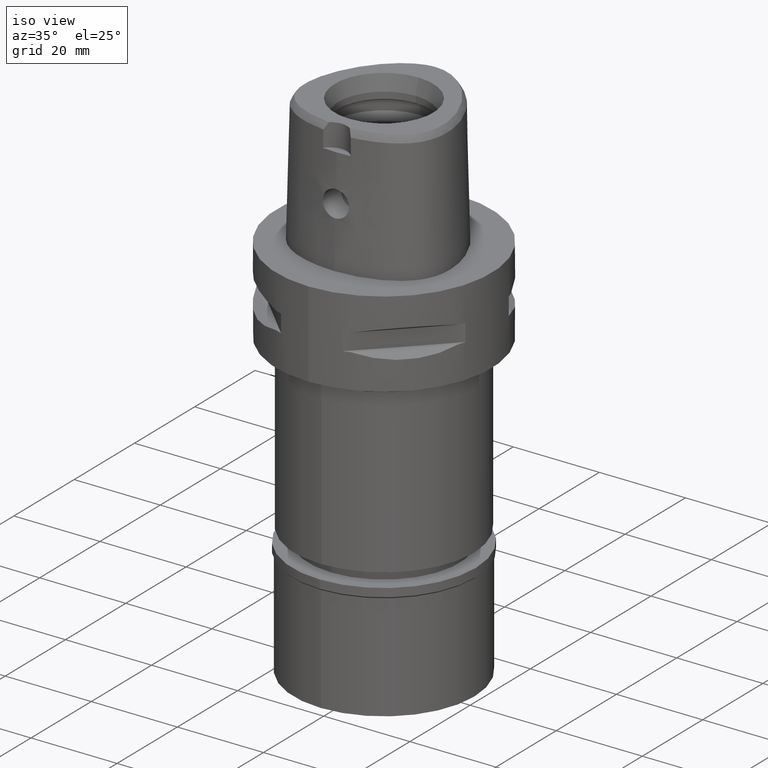
[diagram: clean part render]
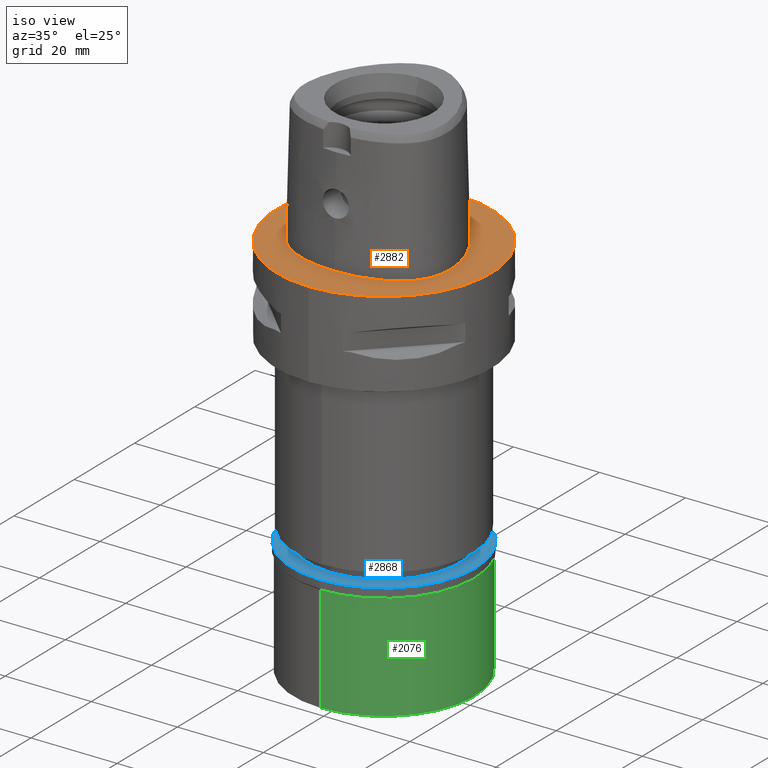
[diagram: same view with three faces highlighted in distinct colors, each labeled with its STEP entity id]
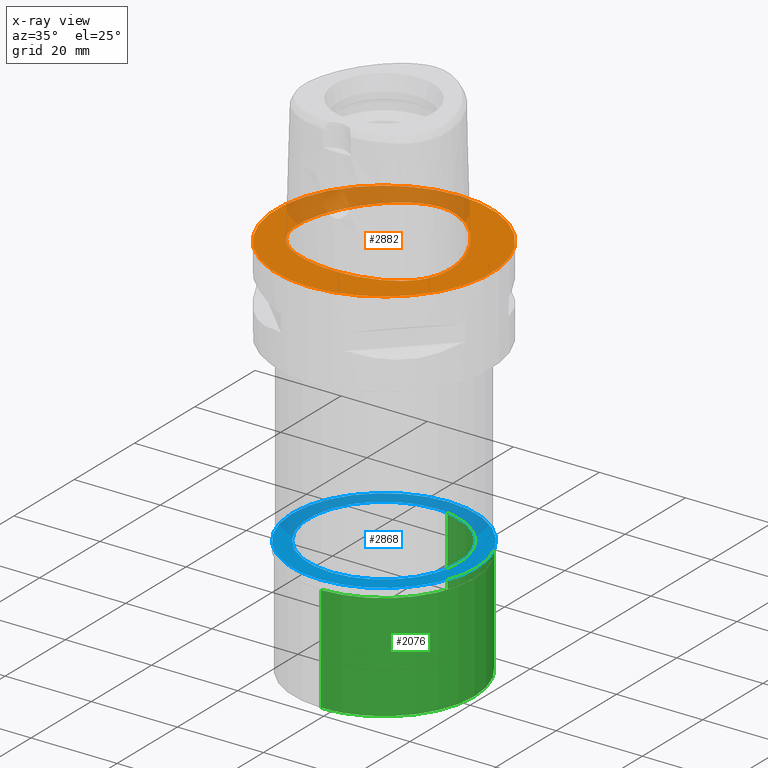
[diagram: x-ray of the same camera — body ghosted, the three highlighted faces saturated]
A machine part, iso view with three faces highlighted in distinct colors.
The next image is the same camera in x-ray (body ghosted, the three faces saturated) — at least one of them is partly hidden behind the body in this view.
Their STEP definitions:

[orange] entity #2882 — the highlighted planar face has unit normal (0, 0, -1).
#3 = EDGE_LOOP ( 'NONE', ( #3701, #4589 ) ) ;
#36 = DIRECTION ( 'NONE',  ( 0.0000000000000000000, 0.0000000000000000000, -1.000000000000000000 ) ) ;
#40 = CARTESIAN_POINT ( 'NONE',  ( -17.16495051821277684, -7.165908203245463959, -1.690801510845045541E-08 ) ) ;
#91 = CARTESIAN_POINT ( 'NONE',  ( -17.71143735603917690, -3.269218749997704787, -1.690801510845045541E-08 ) ) ;
#100 = AXIS2_PLACEMENT_3D ( 'NONE', #1117, #1436, #628 ) ;
#134 = CARTESIAN_POINT ( 'NONE',  ( -8.946741556329989464, -15.03902343790625729, -1.690801510845045541E-08 ) ) ;
#171 = EDGE_CURVE ( 'NONE', #2300, #1055, #1407, .T. ) ;
#269 = CARTESIAN_POINT ( 'NONE',  ( 8.526051962487000024E-11, 18.69499999997999851, 1.857773194538999891E-13 ) ) ;
#294 = CARTESIAN_POINT ( 'NONE',  ( -16.51672824819905827, 3.703437500144240779, -1.690801510845045541E-08 ) ) ;
#296 = CARTESIAN_POINT ( 'NONE',  ( 14.78833381328783325, -11.28232911036973363, -5.104437950337152585E-07 ) ) ;
#343 = CARTESIAN_POINT ( 'NONE',  ( 14.38008120800550671, 8.302343756411996623, -5.104437950337152585E-07 ) ) ;
#413 = ORIENTED_EDGE ( 'NONE', *, *, #2611, .F. ) ;
#628 = DIRECTION ( 'NONE',  ( 0.0000000000000000000, -1.000000000000000000, 0.0000000000000000000 ) ) ;
#719 = PLANE ( 'NONE',  #935 ) ;
#742 = DIRECTION ( 'NONE',  ( 0.0000000000000000000, -1.000000000000000000, 0.0000000000000000000 ) ) ;
#750 = CARTESIAN_POINT ( 'NONE',  ( -17.56373942975215385, -5.455996093810133729, -1.690801510845045541E-08 ) ) ;
#774 = CARTESIAN_POINT ( 'NONE',  ( -16.66912842177992360, -8.445800781422402537, -1.690801510845045541E-08 ) ) ;
#838 = CARTESIAN_POINT ( 'NONE',  ( -14.78833380430417144, -11.28232910184870974, -1.690801510845045541E-08 ) ) ;
#875 = EDGE_LOOP ( 'NONE', ( #413, #1498 ) ) ;
#935 = AXIS2_PLACEMENT_3D ( 'NONE', #3717, #4133, #742 ) ;
#999 = CARTESIAN_POINT ( 'NONE',  ( -4.728927206997867394, 17.73480468788939035, -1.690801510845045541E-08 ) ) ;
#1055 = VERTEX_POINT ( 'NONE', #269 ) ;
#1060 = CARTESIAN_POINT ( 'NONE',  ( 5.051093169834740770, -16.15562501262835227, -5.104437950337152585E-07 ) ) ;
#1081 = CARTESIAN_POINT ( 'NONE',  ( 11.68694517217151763, -13.70394532362162288, -5.104437950337152585E-07 ) ) ;
#1117 = CARTESIAN_POINT ( 'NONE',  ( 0.0000000000000000000, 1.273020347714000000E-14, 0.0000000000000000000 ) ) ;
#1388 = CARTESIAN_POINT ( 'NONE',  ( 8.526051962487000024E-11, 18.69499999997999851, 1.857773194538999891E-13 ) ) ;
#1407 = B_SPLINE_CURVE_WITH_KNOTS ( 'NONE', 3,
 ( #4099, #3273, #1060, #3300, #1081, #2981, #296, #2601, #2556, #4787, #1761, #4056, #4759, #2181, #3677, #343, #1859, #4081, #3322, #3368, #4813, #4492 ),
 .UNSPECIFIED., .F., .F.,
 ( 4, 1, 1, 1, 1, 1, 1, 1, 1, 1, 1, 1, 1, 1, 1, 1, 1, 1, 1, 4 ),
 ( 0.0000000000000000000, 0.08333333333359001227, 0.1666666666668000230, 0.2083333333334000115, 0.2500000000000000000, 0.2916666666666999919, 0.3124999999998999689, 0.3333333333332000326, 0.3541666666666000163, 0.3749999999997999933, 0.4166666666665000407, 0.4583333333330000259, 0.4999999999996999622, 0.5833333333328000192, 0.6666666666660999718, 0.7499999999993000044, 0.8333333333325000369, 0.9166666666657999896, 0.9583333333322999747, 1.000000000000000000 ),
 .UNSPECIFIED. ) ;
#1436 = DIRECTION ( 'NONE',  ( 0.0000000000000000000, 0.0000000000000000000, -1.000000000000000000 ) ) ;
#1498 = ORIENTED_EDGE ( 'NONE', *, *, #2762, .F. ) ;
#1540 = FACE_BOUND ( 'NONE', #3, .T. ) ;
#1644 = AXIS2_PLACEMENT_3D ( 'NONE', #4145, #36, #3387 ) ;
#1735 = CARTESIAN_POINT ( 'NONE',  ( -14.38008119726537970, 8.302343750211678142, -1.690801510845045541E-08 ) ) ;
#1761 = CARTESIAN_POINT ( 'NONE',  ( 17.16495053008644334, -7.165908206769227462, -5.104437950337152585E-07 ) ) ;
#1786 = CARTESIAN_POINT ( 'NONE',  ( -17.49754712349655250, -0.2285937499258093863, -1.690801510845045541E-08 ) ) ;
#1859 = CARTESIAN_POINT ( 'NONE',  ( 11.46563509003561343, 12.45218750827844190, -5.104437950337152585E-07 ) ) ;
#1870 = CARTESIAN_POINT ( 'NONE',  ( -1.683697722553804121, -16.45500000041959154, -1.690801510845045541E-08 ) ) ;
#1966 = CARTESIAN_POINT ( 'NONE',  ( -11.68694516604229605, -13.70394531287258566, -1.690801510845045541E-08 ) ) ;
#2097 = CARTESIAN_POINT ( 'NONE',  ( 0.0000000000000000000, -25.00000000000000000, 0.0000000000000000000 ) ) ;
#2131 = CARTESIAN_POINT ( 'NONE',  ( -11.46563508056043368, 12.45218750027530952, -1.690801510845045541E-08 ) ) ;
#2154 = CARTESIAN_POINT ( 'NONE',  ( -2.040572357754064203, 18.55015625041527016, -1.690801510845045541E-08 ) ) ;
#2181 = CARTESIAN_POINT ( 'NONE',  ( 17.49754713570586517, -0.2285937477594398026, -5.104437950337152585E-07 ) ) ;
#2286 = CARTESIAN_POINT ( 'NONE',  ( -2.281368322490999809E-11, -16.45500000000000185, 1.870355722151999859E-13 ) ) ;
#2300 = VERTEX_POINT ( 'NONE', #2715 ) ;
#2556 = CARTESIAN_POINT ( 'NONE',  ( 16.20602473071626548, -9.356552740767522636, -5.104437950337152585E-07 ) ) ;
#2601 = CARTESIAN_POINT ( 'NONE',  ( 15.64884225290569653, -10.21298828876872022, -5.104437950337152585E-07 ) ) ;
#2611 = EDGE_CURVE ( 'NONE', #4110, #3621, #4306, .T. ) ;
#2662 = CARTESIAN_POINT ( 'NONE',  ( -5.051093167647729310, -16.15562500041149008, -1.690801510845045541E-08 ) ) ;
#2715 = CARTESIAN_POINT ( 'NONE',  ( -2.281368322490999809E-11, -16.45500000000000185, 1.870355722151999859E-13 ) ) ;
#2721 = CARTESIAN_POINT ( 'NONE',  ( -16.20602472000866001, -9.356552734586527365, -1.690801510845045541E-08 ) ) ;
#2747 = CARTESIAN_POINT ( 'NONE',  ( -15.64884224290362447, -10.21298828149724613, -1.690801510845045541E-08 ) ) ;
#2762 = EDGE_CURVE ( 'NONE', #3621, #4110, #3754, .T. ) ;
#2879 = CARTESIAN_POINT ( 'NONE',  ( -0.6801907858906857118, 18.69500000043022325, -1.690801510845045872E-08 ) ) ;
#2882 = ADVANCED_FACE ( 'NONE', ( #4503, #1540 ), #719, .F. ) ;
#2981 = CARTESIAN_POINT ( 'NONE',  ( 13.50690094271748620, -12.48264649445611241, -5.104437950337152585E-07 ) ) ;
#3273 = CARTESIAN_POINT ( 'NONE',  ( 1.683697723273428259, -16.45500001275569701, -5.104437950337152585E-07 ) ) ;
#3300 = CARTESIAN_POINT ( 'NONE',  ( 8.946741560561356721, -15.03902344956007830, -5.104437950337152585E-07 ) ) ;
#3322 = CARTESIAN_POINT ( 'NONE',  ( 4.728927212299886662, 17.73480469916560054, -5.104437950337152585E-07 ) ) ;
#3368 = CARTESIAN_POINT ( 'NONE',  ( 2.040572360294860221, 18.55015626257044659, -5.104437950337152585E-07 ) ) ;
#3387 = DIRECTION ( 'NONE',  ( 0.0000000000000000000, 1.000000000000000000, 0.0000000000000000000 ) ) ;
#3621 = VERTEX_POINT ( 'NONE', #2097 ) ;
#3677 = CARTESIAN_POINT ( 'NONE',  ( 16.51672825988086402, 3.703437504356545062, -5.104437950337152585E-07 ) ) ;
#3701 = ORIENTED_EDGE ( 'NONE', *, *, #3883, .F. ) ;
#3717 = CARTESIAN_POINT ( 'NONE',  ( 0.0000000000000000000, 1.224646799146999965E-14, 0.0000000000000000000 ) ) ;
#3754 = CIRCLE ( 'NONE', #100, 25.00000000000000000 ) ;
#3883 = EDGE_CURVE ( 'NONE', #1055, #2300, #4667, .T. ) ;
#3985 = CARTESIAN_POINT ( 'NONE',  ( 0.0000000000000000000, 25.00000000000000000, 0.0000000000000000000 ) ) ;
#4000 = CARTESIAN_POINT ( 'NONE',  ( -7.967839664488607809, 15.83070312532958823, -1.690801510845045541E-08 ) ) ;
#4056 = CARTESIAN_POINT ( 'NONE',  ( 17.56373944202030657, -5.455996095565049053, -5.104437950337152585E-07 ) ) ;
#4081 = CARTESIAN_POINT ( 'NONE',  ( 7.967839672173288257, 15.83070313512072502, -5.104437950337152585E-07 ) ) ;
#4099 = CARTESIAN_POINT ( 'NONE',  ( -2.281368322490999809E-11, -16.45500000000000185, 1.870355722151999859E-13 ) ) ;
#4110 = VERTEX_POINT ( 'NONE', #3985 ) ;
#4133 = DIRECTION ( 'NONE',  ( 0.0000000000000000000, 0.0000000000000000000, -1.000000000000000000 ) ) ;
#4145 = CARTESIAN_POINT ( 'NONE',  ( 0.0000000000000000000, 1.273020347714000000E-14, 0.0000000000000000000 ) ) ;
#4213 = CARTESIAN_POINT ( 'NONE',  ( -13.50690093506182166, -12.48264648470788885, -1.690801510845045541E-08 ) ) ;
#4306 = CIRCLE ( 'NONE', #1644, 25.00000000000000000 ) ;
#4492 = CARTESIAN_POINT ( 'NONE',  ( 8.526051962487000024E-11, 18.69499999997999851, 1.857773194538999891E-13 ) ) ;
#4503 = FACE_OUTER_BOUND ( 'NONE', #875, .T. ) ;
#4589 = ORIENTED_EDGE ( 'NONE', *, *, #171, .F. ) ;
#4667 = B_SPLINE_CURVE_WITH_KNOTS ( 'NONE', 3,
 ( #1388, #2879, #2154, #999, #4000, #2131, #1735, #294, #1786, #91, #750, #40, #774, #2721, #2747, #838, #4213, #1966, #134, #2662, #1870, #2286 ),
 .UNSPECIFIED., .F., .F.,
 ( 4, 1, 1, 1, 1, 1, 1, 1, 1, 1, 1, 1, 1, 1, 1, 1, 1, 1, 1, 4 ),
 ( 0.0000000000000000000, 0.04166666666833999944, 0.08333333333493000983, 0.1666666666682000142, 0.2500000000013000157, 0.3333333333344999927, 0.4166666666677000253, 0.5000000000008999468, 0.5416666666675000741, 0.5833333333340999793, 0.6250000000006999956, 0.6458333333340000593, 0.6666666666673000119, 0.6875000000005999645, 0.7083333333339000282, 0.7500000000005000445, 0.7916666666671000607, 0.8333333333336999660, 0.9166666666668999985, 1.000000000000000000 ),
 .UNSPECIFIED. ) ;
#4759 = CARTESIAN_POINT ( 'NONE',  ( 17.71143736841353089, -3.269218749916900535, -5.104437950337152585E-07 ) ) ;
#4787 = CARTESIAN_POINT ( 'NONE',  ( 16.66912843307551739, -8.445800786444761954, -5.104437950337152585E-07 ) ) ;
#4813 = CARTESIAN_POINT ( 'NONE',  ( 0.6801907867857971413, 18.69500001275854828, -5.104437950337152585E-07 ) ) ;

[blue] entity #2868 — the highlighted planar face has unit normal (0, 0, -1).
#13 = AXIS2_PLACEMENT_3D ( 'NONE', #4313, #2823, #4699 ) ;
#79 = CARTESIAN_POINT ( 'NONE',  ( 0.0000000000000000000, 0.0000000000000000000, 0.0000000000000000000 ) ) ;
#213 = EDGE_LOOP ( 'NONE', ( #927, #1243 ) ) ;
#354 = VERTEX_POINT ( 'NONE', #923 ) ;
#369 = EDGE_CURVE ( 'NONE', #515, #1625, #4170, .T. ) ;
#478 = AXIS2_PLACEMENT_3D ( 'NONE', #79, #1089, #1848 ) ;
#504 = DIRECTION ( 'NONE',  ( 0.0000000000000000000, 1.000000000000000000, 0.0000000000000000000 ) ) ;
#515 = VERTEX_POINT ( 'NONE', #3460 ) ;
#777 = AXIS2_PLACEMENT_3D ( 'NONE', #3791, #3422, #504 ) ;
#923 = CARTESIAN_POINT ( 'NONE',  ( 0.0000000000000000000, -17.50000000000000000, 0.0000000000000000000 ) ) ;
#927 = ORIENTED_EDGE ( 'NONE', *, *, #369, .F. ) ;
#1089 = DIRECTION ( 'NONE',  ( 0.0000000000000000000, 0.0000000000000000000, -1.000000000000000000 ) ) ;
#1243 = ORIENTED_EDGE ( 'NONE', *, *, #2310, .F. ) ;
#1340 = VERTEX_POINT ( 'NONE', #4580 ) ;
#1625 = VERTEX_POINT ( 'NONE', #4706 ) ;
#1648 = CIRCLE ( 'NONE', #777, 17.50000000000000000 ) ;
#1690 = CARTESIAN_POINT ( 'NONE',  ( 0.0000000000000000000, 0.0000000000000000000, 0.0000000000000000000 ) ) ;
#1848 = DIRECTION ( 'NONE',  ( 0.0000000000000000000, -1.000000000000000000, 0.0000000000000000000 ) ) ;
#1919 = ORIENTED_EDGE ( 'NONE', *, *, #3280, .F. ) ;
#2310 = EDGE_CURVE ( 'NONE', #1625, #515, #4135, .T. ) ;
#2511 = ORIENTED_EDGE ( 'NONE', *, *, #3162, .F. ) ;
#2811 = AXIS2_PLACEMENT_3D ( 'NONE', #3945, #3243, #4237 ) ;
#2823 = DIRECTION ( 'NONE',  ( 0.0000000000000000000, 0.0000000000000000000, 1.000000000000000000 ) ) ;
#2868 = ADVANCED_FACE ( 'NONE', ( #2970, #3689 ), #4454, .F. ) ;
#2970 = FACE_OUTER_BOUND ( 'NONE', #213, .T. ) ;
#3162 = EDGE_CURVE ( 'NONE', #354, #1340, #4079, .T. ) ;
#3243 = DIRECTION ( 'NONE',  ( 0.0000000000000000000, 0.0000000000000000000, -1.000000000000000000 ) ) ;
#3244 = DIRECTION ( 'NONE',  ( 0.0000000000000000000, 1.000000000000000000, 0.0000000000000000000 ) ) ;
#3280 = EDGE_CURVE ( 'NONE', #1340, #354, #1648, .T. ) ;
#3422 = DIRECTION ( 'NONE',  ( 0.0000000000000000000, 0.0000000000000000000, 1.000000000000000000 ) ) ;
#3460 = CARTESIAN_POINT ( 'NONE',  ( 0.0000000000000000000, 21.35000000000000142, 0.0000000000000000000 ) ) ;
#3689 = FACE_BOUND ( 'NONE', #4465, .T. ) ;
#3791 = CARTESIAN_POINT ( 'NONE',  ( 0.0000000000000000000, 0.0000000000000000000, 0.0000000000000000000 ) ) ;
#3945 = CARTESIAN_POINT ( 'NONE',  ( 0.0000000000000000000, 0.0000000000000000000, 0.0000000000000000000 ) ) ;
#4079 = CIRCLE ( 'NONE', #13, 17.50000000000000000 ) ;
#4135 = CIRCLE ( 'NONE', #2811, 21.35000000000000142 ) ;
#4170 = CIRCLE ( 'NONE', #4796, 21.35000000000000142 ) ;
#4237 = DIRECTION ( 'NONE',  ( 0.0000000000000000000, -1.000000000000000000, 0.0000000000000000000 ) ) ;
#4313 = CARTESIAN_POINT ( 'NONE',  ( 0.0000000000000000000, 0.0000000000000000000, 0.0000000000000000000 ) ) ;
#4454 = PLANE ( 'NONE',  #478 ) ;
#4465 = EDGE_LOOP ( 'NONE', ( #1919, #2511 ) ) ;
#4580 = CARTESIAN_POINT ( 'NONE',  ( 0.0000000000000000000, 17.50000000000000000, 0.0000000000000000000 ) ) ;
#4699 = DIRECTION ( 'NONE',  ( 0.0000000000000000000, -1.000000000000000000, 0.0000000000000000000 ) ) ;
#4706 = CARTESIAN_POINT ( 'NONE',  ( 0.0000000000000000000, -21.35000000000000142, 0.0000000000000000000 ) ) ;
#4729 = DIRECTION ( 'NONE',  ( 0.0000000000000000000, 0.0000000000000000000, -1.000000000000000000 ) ) ;
#4796 = AXIS2_PLACEMENT_3D ( 'NONE', #1690, #4729, #3244 ) ;

[green] entity #2076 — the highlighted cylindrical surface (partial cylindrical patch) has radius 21 mm, axis along (0, 0, -1).
#132 = ORIENTED_EDGE ( 'NONE', *, *, #4567, .F. ) ;
#187 = AXIS2_PLACEMENT_3D ( 'NONE', #212, #2070, #3149 ) ;
#212 = CARTESIAN_POINT ( 'NONE',  ( 0.0000000000000000000, 0.0000000000000000000, -27.09999999999999787 ) ) ;
#315 = EDGE_CURVE ( 'NONE', #2408, #4785, #493, .T. ) ;
#493 = CIRCLE ( 'NONE', #187, 21.00000000000000000 ) ;
#616 = DIRECTION ( 'NONE',  ( 0.0000000000000000000, 0.0000000000000000000, -1.000000000000000000 ) ) ;
#634 = VECTOR ( 'NONE', #2680, 1000.000000000000000 ) ;
#1180 = LINE ( 'NONE', #3444, #634 ) ;
#1249 = CARTESIAN_POINT ( 'NONE',  ( 0.0000000000000000000, -21.00000000000000000, -2.299999999999999822 ) ) ;
#1305 = DIRECTION ( 'NONE',  ( 0.0000000000000000000, 0.0000000000000000000, -1.000000000000000000 ) ) ;
#1616 = ORIENTED_EDGE ( 'NONE', *, *, #2156, .T. ) ;
#1931 = CARTESIAN_POINT ( 'NONE',  ( 0.0000000000000000000, 21.00000000000000000, -27.09999999999999787 ) ) ;
#1990 = CARTESIAN_POINT ( 'NONE',  ( 0.0000000000000000000, 0.0000000000000000000, -2.299999999999999822 ) ) ;
#2013 = VECTOR ( 'NONE', #4806, 1000.000000000000000 ) ;
#2064 = CARTESIAN_POINT ( 'NONE',  ( 0.0000000000000000000, 21.00000000000000000, -2.299999999999999822 ) ) ;
#2070 = DIRECTION ( 'NONE',  ( 0.0000000000000000000, 0.0000000000000000000, 1.000000000000000000 ) ) ;
#2076 = ADVANCED_FACE ( 'NONE', ( #2477 ), #3274, .T. ) ;
#2077 = DIRECTION ( 'NONE',  ( 0.0000000000000000000, 1.000000000000000000, 0.0000000000000000000 ) ) ;
#2090 = ORIENTED_EDGE ( 'NONE', *, *, #4117, .T. ) ;
#2103 = DIRECTION ( 'NONE',  ( 0.0000000000000000000, -1.000000000000000000, 0.0000000000000000000 ) ) ;
#2156 = EDGE_CURVE ( 'NONE', #2515, #2408, #2498, .T. ) ;
#2408 = VERTEX_POINT ( 'NONE', #3019 ) ;
#2477 = FACE_OUTER_BOUND ( 'NONE', #4457, .T. ) ;
#2498 = LINE ( 'NONE', #4006, #2013 ) ;
#2515 = VERTEX_POINT ( 'NONE', #1249 ) ;
#2680 = DIRECTION ( 'NONE',  ( 0.0000000000000000000, 0.0000000000000000000, -1.000000000000000000 ) ) ;
#2894 = AXIS2_PLACEMENT_3D ( 'NONE', #3981, #616, #2103 ) ;
#3019 = CARTESIAN_POINT ( 'NONE',  ( 0.0000000000000000000, -21.00000000000000000, -27.09999999999999787 ) ) ;
#3089 = VERTEX_POINT ( 'NONE', #2064 ) ;
#3149 = DIRECTION ( 'NONE',  ( 0.0000000000000000000, -1.000000000000000000, 0.0000000000000000000 ) ) ;
#3227 = CIRCLE ( 'NONE', #4474, 21.00000000000000000 ) ;
#3274 = CYLINDRICAL_SURFACE ( 'NONE', #2894, 21.00000000000000000 ) ;
#3292 = ORIENTED_EDGE ( 'NONE', *, *, #315, .T. ) ;
#3444 = CARTESIAN_POINT ( 'NONE',  ( 0.0000000000000000000, 21.00000000000000000, -2.299999999999999822 ) ) ;
#3981 = CARTESIAN_POINT ( 'NONE',  ( 0.0000000000000000000, 0.0000000000000000000, 0.0000000000000000000 ) ) ;
#4006 = CARTESIAN_POINT ( 'NONE',  ( 0.0000000000000000000, -21.00000000000000000, -2.299999999999999822 ) ) ;
#4117 = EDGE_CURVE ( 'NONE', #3089, #2515, #3227, .T. ) ;
#4457 = EDGE_LOOP ( 'NONE', ( #2090, #1616, #3292, #132 ) ) ;
#4474 = AXIS2_PLACEMENT_3D ( 'NONE', #1990, #1305, #2077 ) ;
#4567 = EDGE_CURVE ( 'NONE', #3089, #4785, #1180, .T. ) ;
#4785 = VERTEX_POINT ( 'NONE', #1931 ) ;
#4806 = DIRECTION ( 'NONE',  ( 0.0000000000000000000, 0.0000000000000000000, -1.000000000000000000 ) ) ;